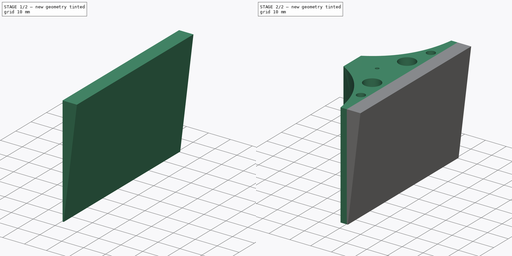
[diagram: build sequence overview — one tinted view per stage of 2, left to right]
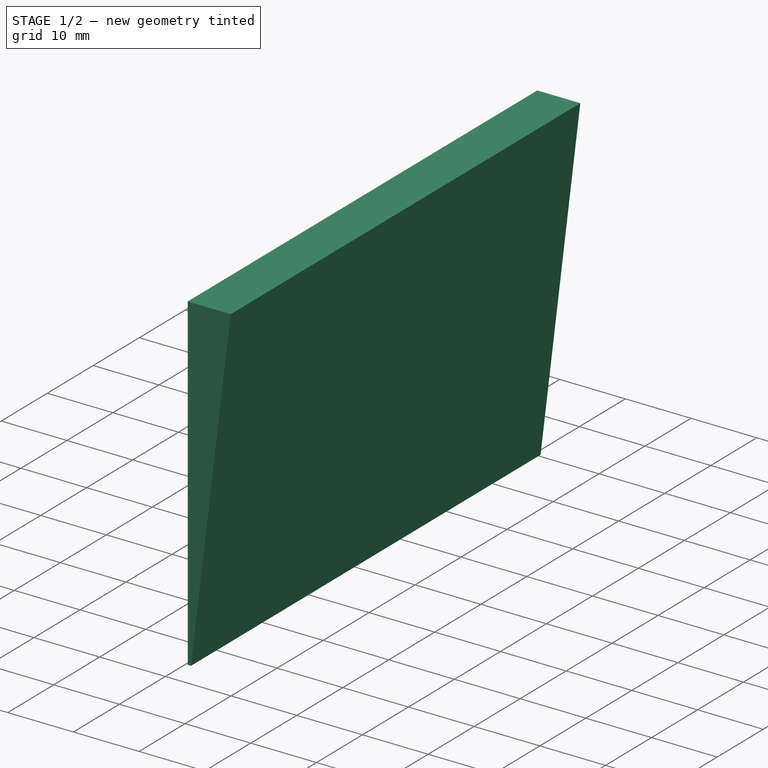
[diagram: stage 1 of 2 — iso view after this stage's code; geometry added in this stage tinted green]
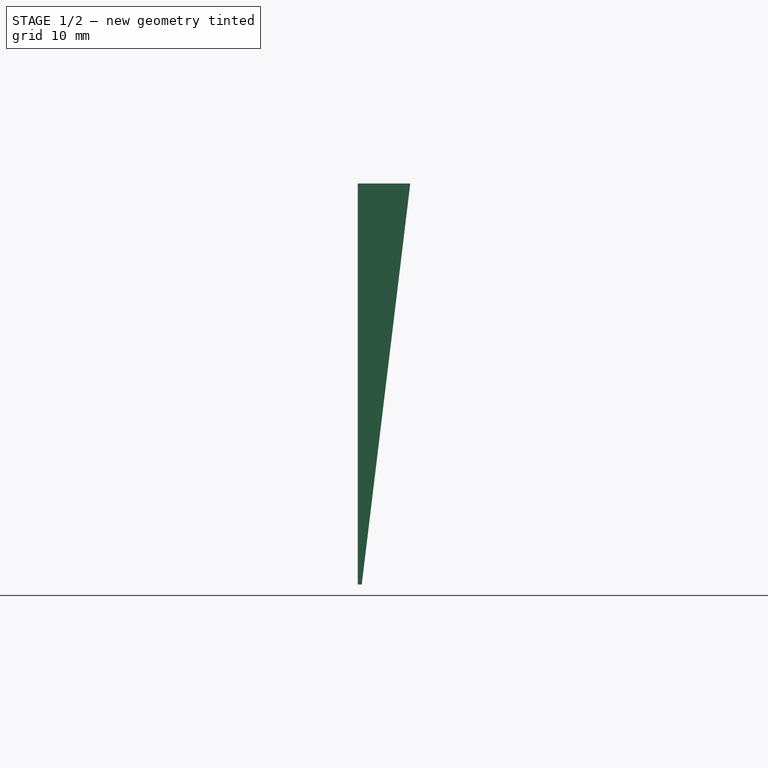
[diagram: stage 1 of 2 — front view after this stage's code; geometry added in this stage tinted green]
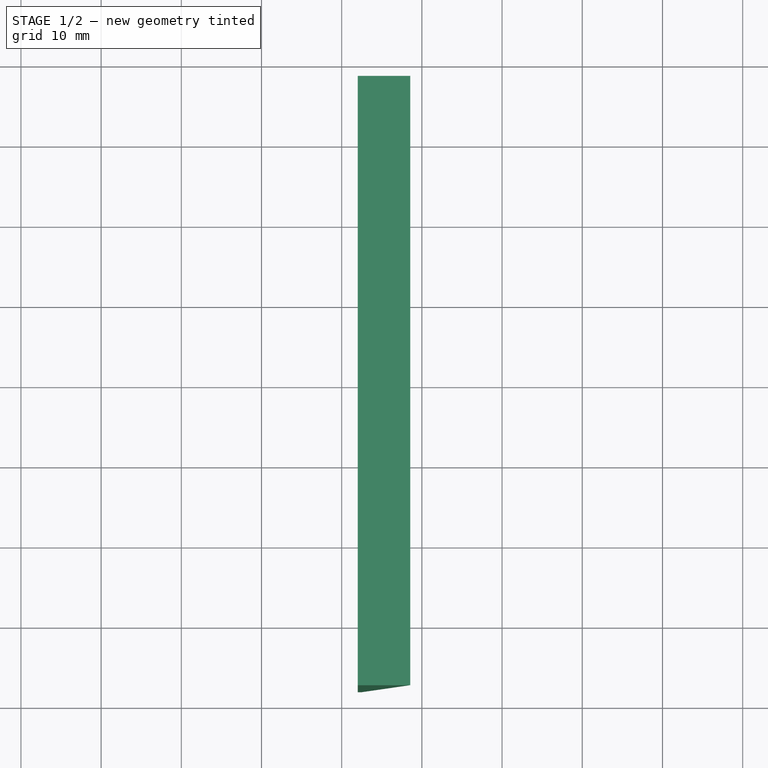
[diagram: stage 1 of 2 — top view after this stage's code; geometry added in this stage tinted green]
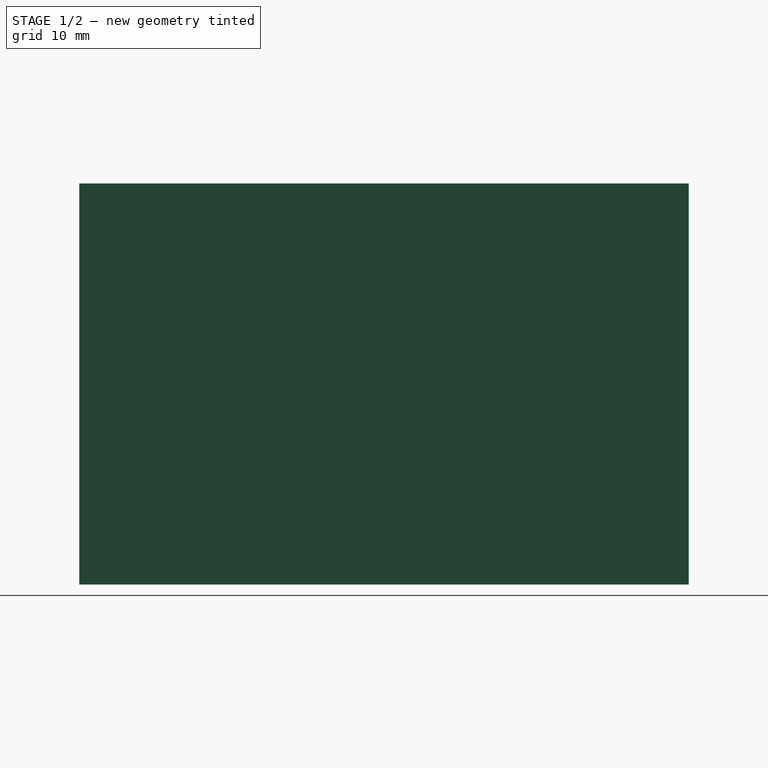
[diagram: stage 1 of 2 — right view after this stage's code; geometry added in this stage tinted green]
FCSTD DOCUMENT  (FreeCAD 0.20R0.20.2)
Label: 0.006
License: All rights reserved
LicenseURL: http://en.wikipedia.org/wiki/All_rights_reserved
objects: Sketcher::SketchObject×2, Part::Extrusion×2
note: 4 computed .brp shape members not serialized (recipe doc carries the construction recipe); baked Part::Feature solids carry a one-line shape summary decoded from their .brp

FEATURE [Sketcher::SketchObject] Sketch001  label="nearSwitchHolderAngle"
  FullyConstrained = true
  MapMode = 3
  Placement = pos=(0,0,0) rot=(1,0,0;1.5708rad)
  Support = -> [Sketch]
  sketch-geometry (4):
    g0: LineSegment StartX=0 StartY=0 StartZ=0 EndX=0.5 EndY=0 EndZ=0
    g1: LineSegment StartX=0 StartY=0 StartZ=0 EndX=0 EndY=50 EndZ=0
    g2: LineSegment StartX=0 StartY=50 StartZ=0 EndX=6.55 EndY=50 EndZ=0
    g3: LineSegment StartX=6.55 StartY=50 StartZ=0 EndX=0.5 EndY=0 EndZ=0
  constraints (11):
    c: Coincident(g0,g-1)
    c: Horizontal(g0)
    c: Distance(g0) = 0.5
    c: Coincident(g1,g0)
    c: Vertical(g1)
    c: Distance(g1) = 50
    c: Coincident(g2,g1)
    c: Horizontal(g2)
    c: Distance(g2) = 6.55
    c: Coincident(g3,g2)
    c: Coincident(g3,g0)
FEATURE [Part::Extrusion] Extrude001
  Base = -> Sketch001
  Dir = (0,-1,2e-16)
  DirMode = 2
  FaceMakerClass = Part::FaceMakerBullseye
  LengthFwd = 76
  LengthRev = 0
  Placement = pos=(12,38,0) rot=(0,0,1;0rad)
  Solid = true
  Symmetric = false
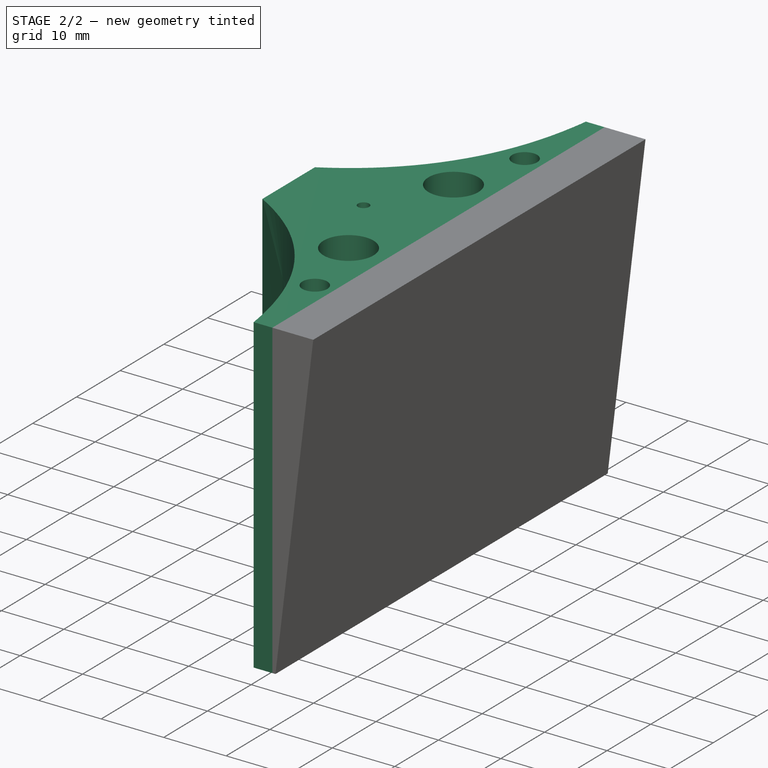
[diagram: stage 2 of 2 — iso view after this stage's code; geometry added in this stage tinted green]
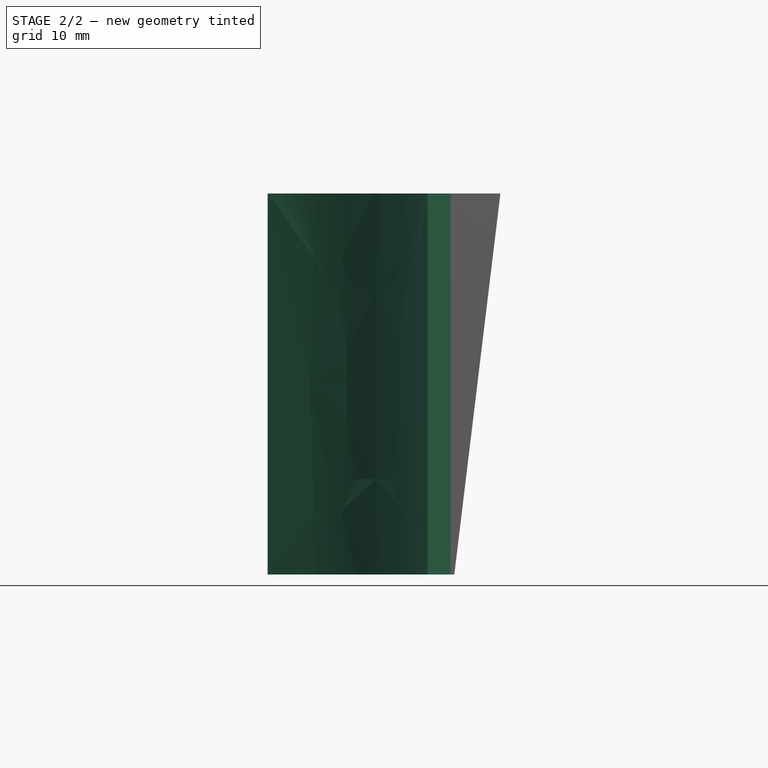
[diagram: stage 2 of 2 — front view after this stage's code; geometry added in this stage tinted green]
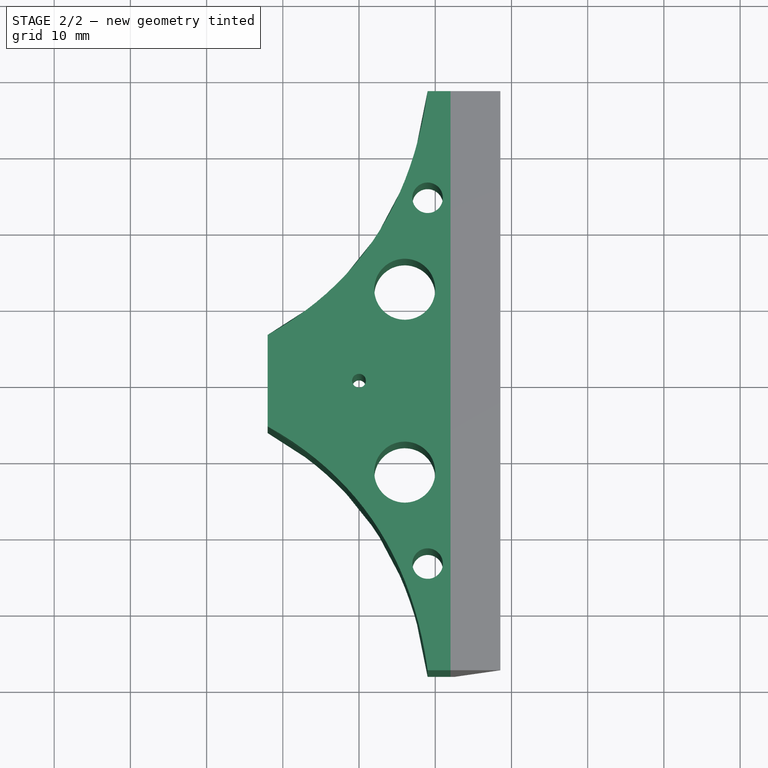
[diagram: stage 2 of 2 — top view after this stage's code; geometry added in this stage tinted green]
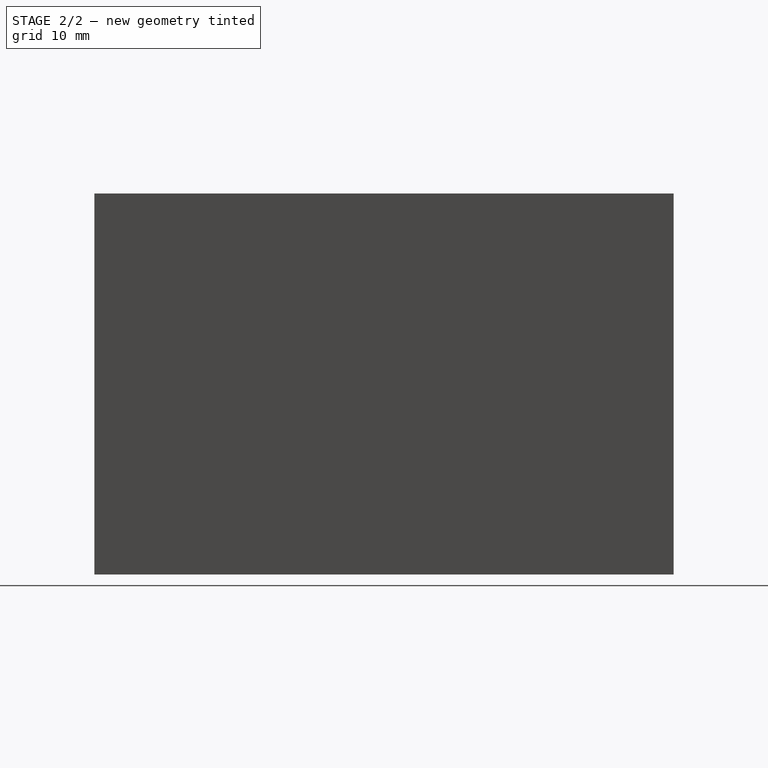
[diagram: stage 2 of 2 — right view after this stage's code; geometry added in this stage tinted green]
FEATURE [Sketcher::SketchObject] Sketch
  FullyConstrained = true
  sketch-geometry (23):
    g0: Circle CenterX=0 CenterY=0 CenterZ=0 NormalX=0 NormalY=0 NormalZ=1 AngleXU=0 Radius=0.9
    g1: LineSegment StartX=12 StartY=0 StartZ=0 EndX=12 EndY=38 EndZ=0
    g2: LineSegment StartX=12 StartY=0 StartZ=0 EndX=12 EndY=-38 EndZ=0
    g3: LineSegment StartX=12 StartY=38 StartZ=0 EndX=9 EndY=38 EndZ=0
    g4: LineSegment StartX=12 StartY=-38 StartZ=0 EndX=9 EndY=-38 EndZ=0
    g5: LineSegment StartX=-12 StartY=0 StartZ=0 EndX=-12 EndY=6 EndZ=0
    g6: LineSegment StartX=-12 StartY=0 StartZ=0 EndX=-12 EndY=-6 EndZ=0
    g7: Circle CenterX=-12 CenterY=6 CenterZ=0 NormalX=0 NormalY=0 NormalZ=1 AngleXU=0 Radius=1
    g8: Circle CenterX=6 CenterY=16 CenterZ=0 NormalX=0 NormalY=0 NormalZ=1 AngleXU=0 Radius=1
    g9: Circle CenterX=9 CenterY=38 CenterZ=0 NormalX=0 NormalY=0 NormalZ=1 AngleXU=0 Radius=1
    g10: BSplineCurve PolesCount=3 KnotsCount=2 Degree=2 IsPeriodic=0
    g11: GeomPoint X=-12 Y=6 Z=0
    g12: GeomPoint X=9 Y=38 Z=0
    g13: Circle CenterX=-12 CenterY=-6 CenterZ=0 NormalX=0 NormalY=0 NormalZ=1 AngleXU=0 Radius=1
    g14: Circle CenterX=6 CenterY=-16 CenterZ=0 NormalX=0 NormalY=0 NormalZ=1 AngleXU=0 Radius=1
    g15: Circle CenterX=9 CenterY=-38 CenterZ=0 NormalX=0 NormalY=0 NormalZ=1 AngleXU=0 Radius=1
    g16: BSplineCurve PolesCount=3 KnotsCount=2 Degree=2 IsPeriodic=0
    g17: GeomPoint X=-12 Y=-6 Z=0
    g18: GeomPoint X=9 Y=-38 Z=0
    g19: Circle CenterX=6 CenterY=12 CenterZ=0 NormalX=0 NormalY=0 NormalZ=1 AngleXU=0 Radius=4
    g20: Circle CenterX=6 CenterY=-12 CenterZ=0 NormalX=0 NormalY=0 NormalZ=1 AngleXU=0 Radius=4
    g21: Circle CenterX=9 CenterY=-24 CenterZ=0 NormalX=0 NormalY=0 NormalZ=1 AngleXU=0 Radius=2
    g22: Circle CenterX=9 CenterY=24 CenterZ=0 NormalX=0 NormalY=0 NormalZ=1 AngleXU=0 Radius=2
  constraints (43):
    c: Block(g0)
    c: Vertical(g1)
    c: Distance(g1) = 38
    c: Vertical(g2)
    c: Distance(g2) = 38
    c: Coincident(g3,g1)
    c: Horizontal(g3)
    c: Coincident(g4,g2)
    c: Horizontal(g4)
    c: Distance(g4) = 3
    c: Distance(g3) = 3
    c: Vertical(g5)
    c: Vertical(g6)
    c: Distance(g5) = 6
    c: Distance(g6) = 6
    c: Weight(g7) = 1
    c: Coincident(g10,g5)
    c: Equal(g7,g8)
    c: Equal(g7,g9)
    c: Coincident(g10,g3)
    c: InternalAlignment(g7,g10)
    c: InternalAlignment(g8,g10)
    c: InternalAlignment(g9,g10)
    c: InternalAlignment(g11,g10)
    c: InternalAlignment(g12,g10)
    c: Weight(g13) = 1
    c: Coincident(g16,g6)
    c: Equal(g13,g14)
    c: Equal(g13,g15)
    c: Coincident(g16,g4)
    c: InternalAlignment(g13,g16)
    c: InternalAlignment(g14,g16)
    c: InternalAlignment(g15,g16)
    c: InternalAlignment(g17,g16)
    c: InternalAlignment(g18,g16)
    c: PointOnObject(g8,g19)
    c: PointOnObject(g14,g20)
    c: Block(g19)
    c: Block(g22)
    c: Block(g10)
    c: Block(g16)
    c: Block(g20)
    c: Block(g21)
FEATURE [Part::Extrusion] Extrude  label="nearSwitchHolder"
  Base = -> Sketch
  Dir = (0,0,1)
  DirMode = 2
  FaceMakerClass = Part::FaceMakerBullseye
  LengthFwd = 50
  LengthRev = 0
  Solid = true
  Symmetric = false
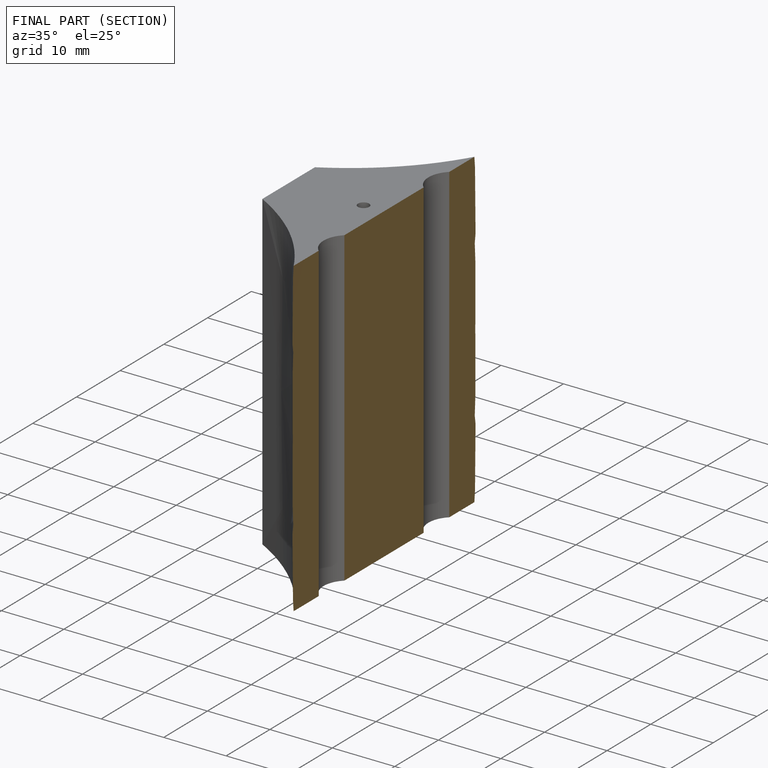
[diagram: finished part — half-section view (interior)]
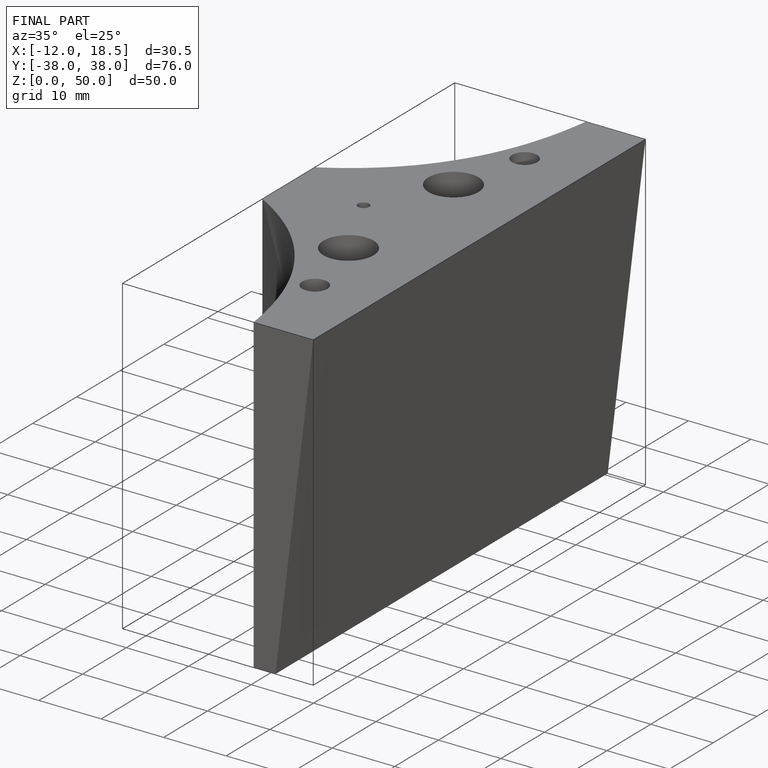
[diagram: finished part — iso view with bounding-box wireframe]
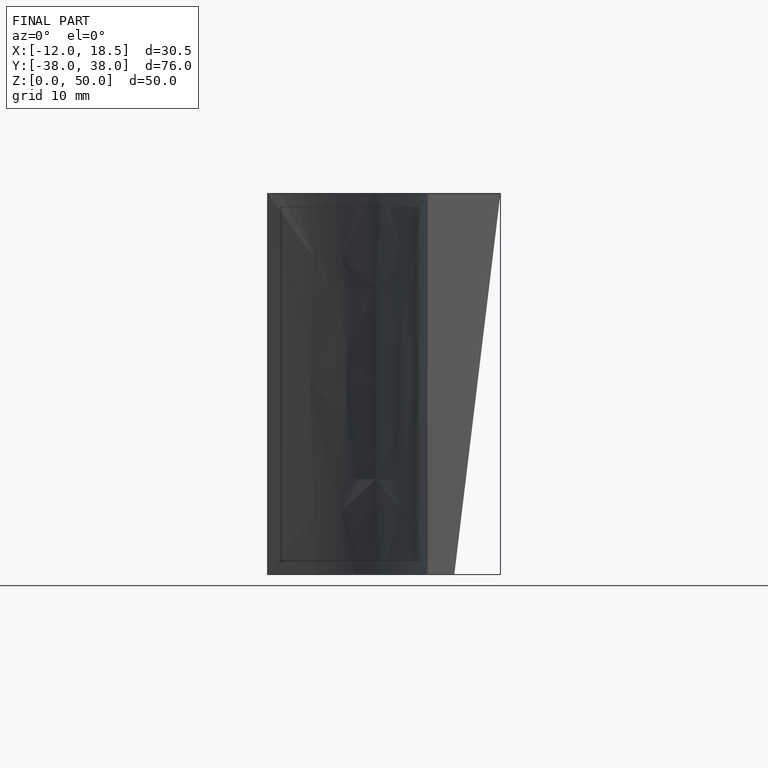
[diagram: finished part — front view with bounding-box wireframe]
